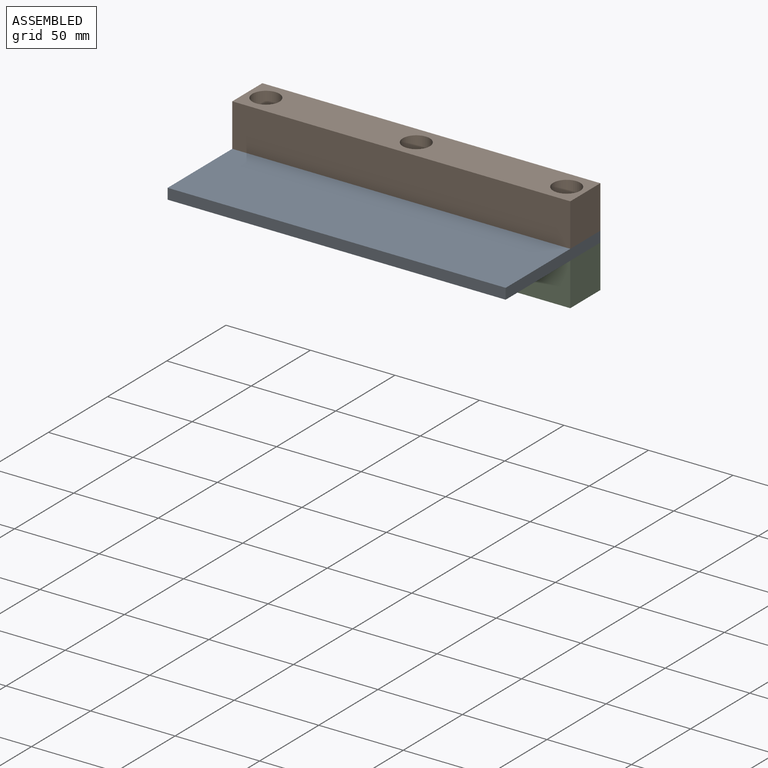
[diagram: assembled view]
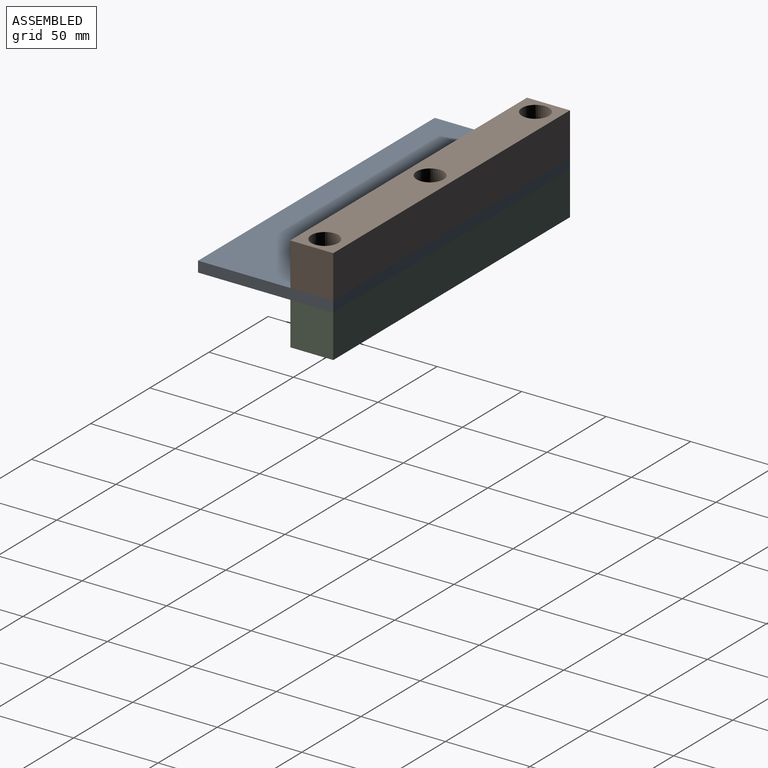
[diagram: assembled view, second angle]
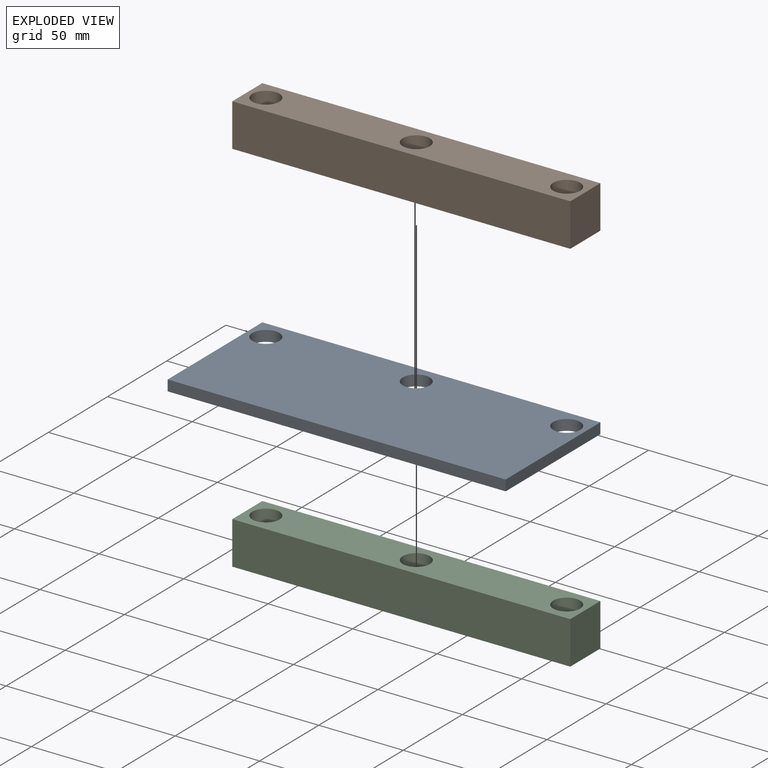
[diagram: exploded view]
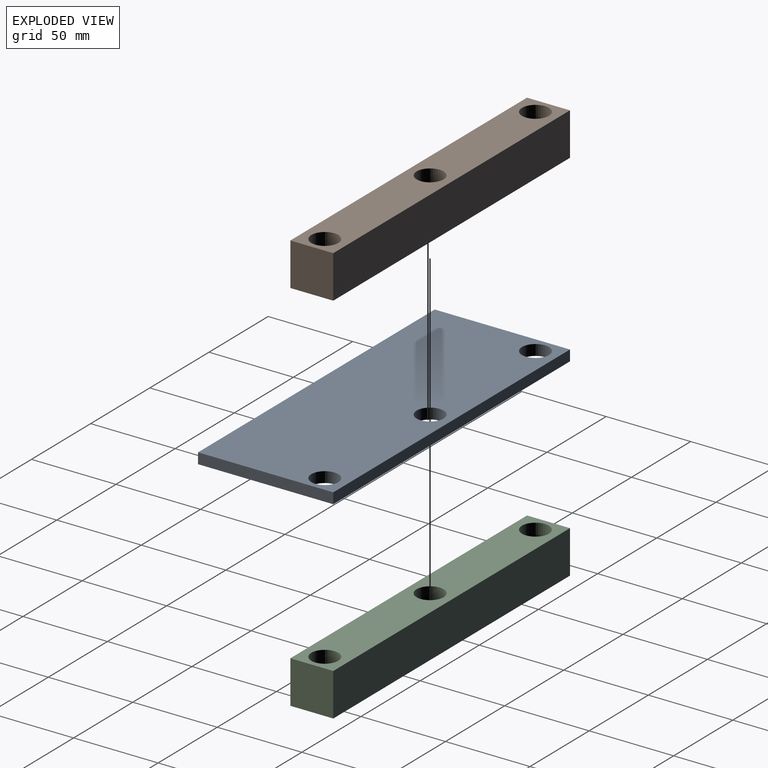
[diagram: exploded view, second angle]
ASSEMBLY  parts=3 mates=4
PART A: 9 faces, bbox 200x80x6.4 mm
  f0: plane 200x6.35mm, normal (0,1,0), area 1270mm2, adj f1,f3,f4,f5
  f1: plane 80x6.35mm, normal (-1,0,0), area 508mm2, adj f0,f2,f4,f5
  f2: plane 200x6.35mm, normal (0,-1,0), area 1270mm2, adj f1,f3,f4,f5
  f3: plane 80x6.35mm, normal (1,0,0), area 508mm2, adj f0,f2,f4,f5
  f4: plane 200x80mm, normal (0,0,1), area 15396.8mm2, adj f0,f1,f2,f3,f6,f7,f8
  f5: plane 200x80mm, normal (0,0,-1), area 15396.8mm2, adj f0,f1,f2,f3,f6,f7,f8
  f6: cylinder r=8mm len=16mm, axis (0,0,1), area 319.2mm2, adj f4,f5
  f7: cylinder r=8mm len=16mm, axis (0,0,1), area 319.2mm2, adj f4,f5
  f8: cylinder r=8mm len=16mm, axis (0,0,1), area 319.2mm2, adj f4,f5
PART B: 9 faces, bbox 200x25.4x25.4 mm
  f0: plane 200x25.4mm, normal (0,1,0), area 5080mm2, adj f1,f3,f4,f5
  f1: plane 25.4x25.4mm, normal (-1,0,0), area 645.2mm2, adj f0,f2,f4,f5
  f2: plane 200x25.4mm, normal (0,-1,0), area 5080mm2, adj f1,f3,f4,f5
  f3: plane 25.4x25.4mm, normal (1,0,0), area 645.2mm2, adj f0,f2,f4,f5
  f4: plane 200x25.4mm, normal (0,0,1), area 4476.8mm2, adj f0,f1,f2,f3,f6,f7,f8
  f5: plane 200x25.4mm, normal (0,0,-1), area 4476.8mm2, adj f0,f1,f2,f3,f6,f7,f8
  f6: cylinder r=8mm len=25.4mm, axis (0,0,1), area 1276.7mm2, adj f4,f5
  f7: cylinder r=8mm len=25.4mm, axis (0,0,1), area 1276.7mm2, adj f4,f5
  f8: cylinder r=8mm len=25.4mm, axis (0,0,1), area 1276.7mm2, adj f4,f5
PART C: same geometry as B
PLACE A t=(-84.53,-35.54,-9.88)mm
PLACE B t=(162.19,44.46,-3.53)mm
PLACE C t=(162.19,44.46,-35.28)mm
MATE planar B.f7 <-> A.f4  axis (0,0,-1) through (15.47,31.76,-3.53)mm
MATE planar C.f7 <-> A.f5  axis (0,0,1) through (15.47,31.76,-9.88)mm
MATE cylindrical C.f7 <-> A.f7  axis (0,0,1) through (15.47,31.76,-35.28)mm
MATE cylindrical B.f7 <-> A.f7  axis (0,0,1) through (15.47,31.76,-3.53)mm
